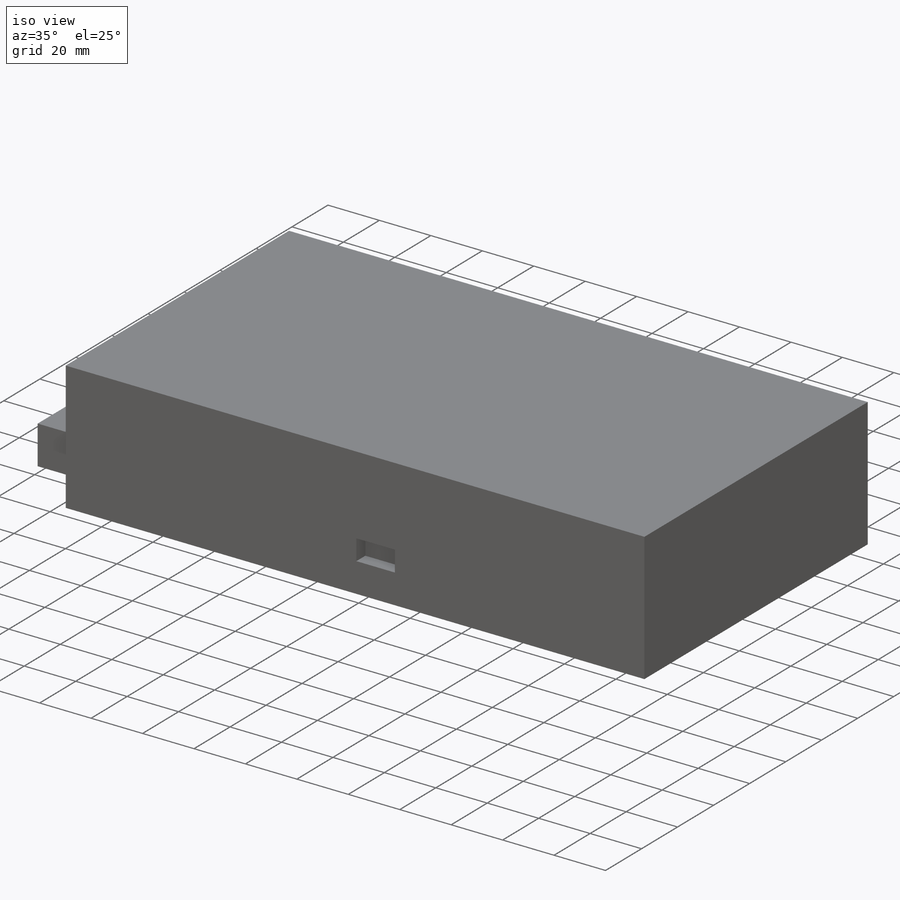
[diagram: iso view]
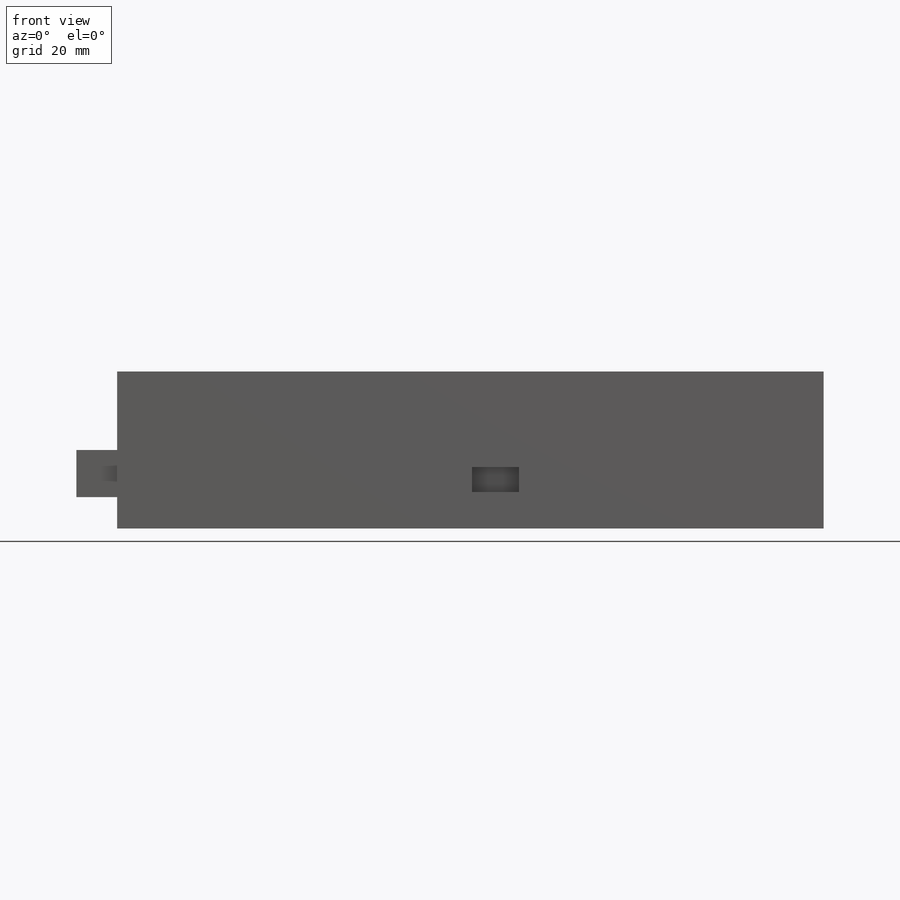
[diagram: front view]
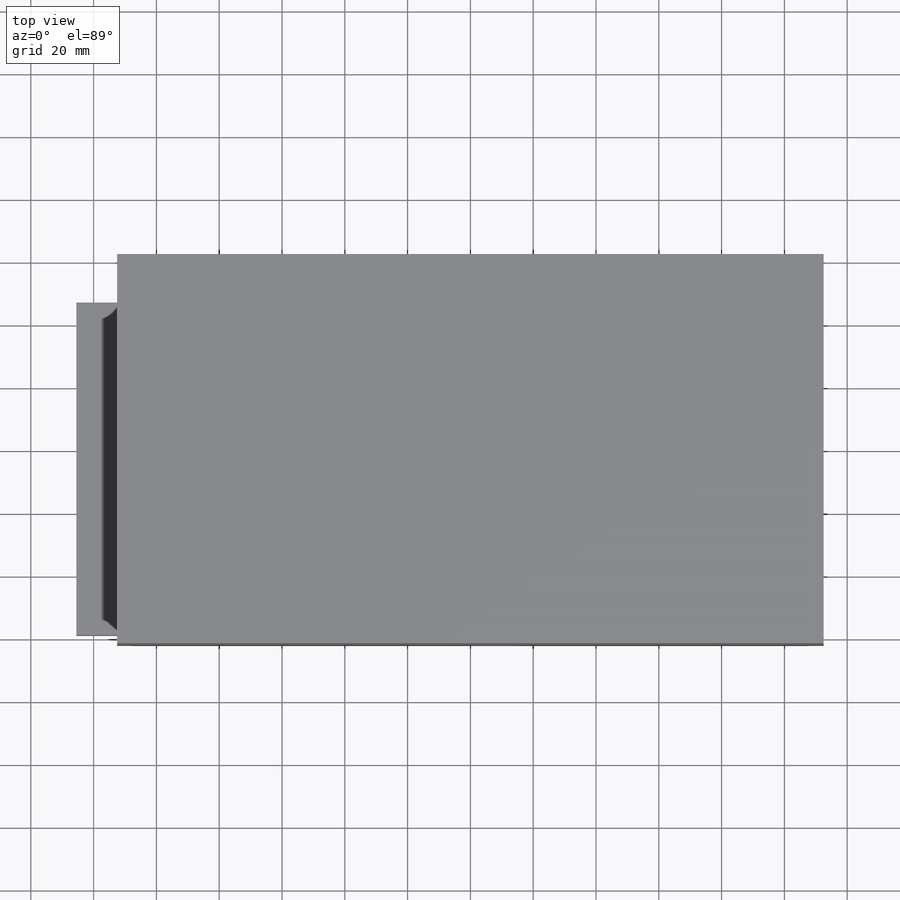
[diagram: top view]
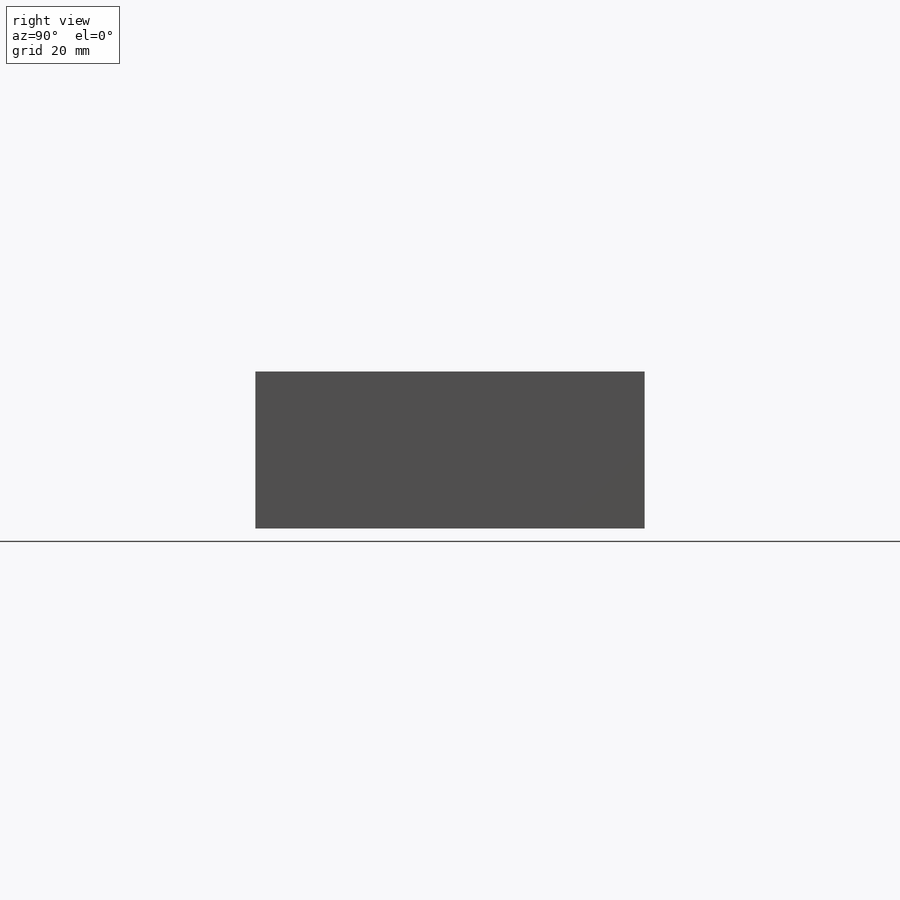
[diagram: right view]
SOLIDWORKS PART (.sldprt)
format: sldprt  version: not decoded by parser v0  size: 158,720 bytes
history: native  units: mm
features: sketch x4, extrude x2, cut_extrude x2, material x1 (+11 scaffold rows collapsed)
feature tree (20):
  scaffold x11  (default folders/planes/origin — collapsed)
  material  "Material <not specified>"
  sketch  "Sketch1"  dims[D1=124.0mm D2=225.0mm]
  extrude  "Boss-Extrude1"  Depth=50mm
  sketch  "Sketch3"  dims[D5=4.0mm D1=37.5mm D2=50.0mm D3=150.0mm D4=33.5mm]
  cut_extrude  "Cut-Extrude2"  Depth=5mm
  sketch  "Sketch4"  dims[D1=11.5mm D2=97.0mm D3=15.0mm D4=8.0mm]
  cut_extrude  "Cut-Extrude3"  Depth=5mm
  sketch  "Sketch5"  dims[c1.D1=10.0mm c1.D2=3.0mm c1.D3=30.0mm c1.D4=15.0mm c2.D3=15.0mm]
  extrude  "Boss-Extrude2"  Depth=13mm
decode coverage: 8 of 8 modeling features carry decoded parameters
note: suppression state not decoded; provenance and decode notes live in map.json
